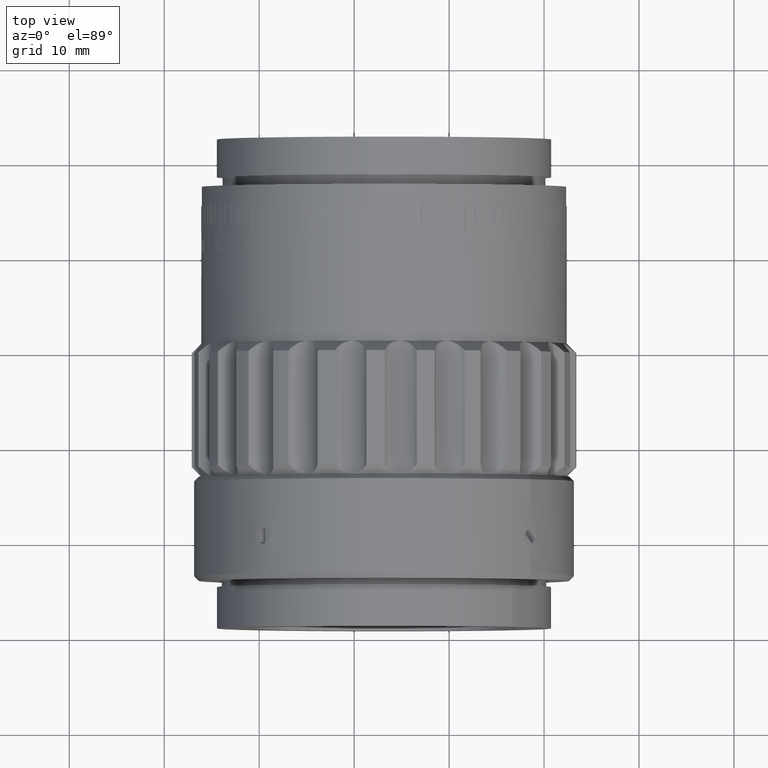
[diagram: clean part render]
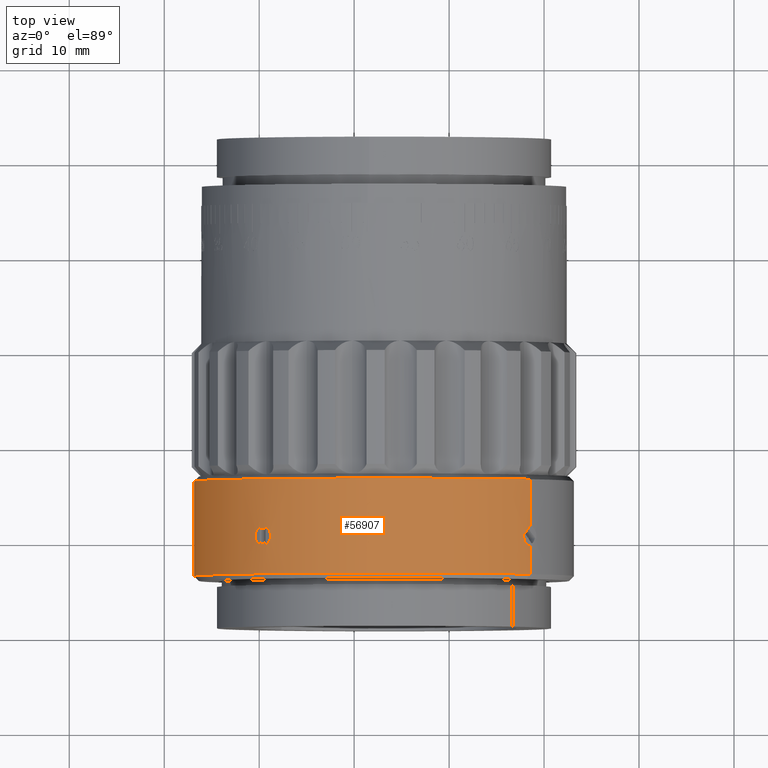
[diagram: same view with one face highlighted and labeled with its STEP entity id]
A machine part, top view. The second image highlights one B-rep face of the part: STEP entity #56907.
In plain terms, the highlighted cylindrical surface (partial cylindrical patch) has radius 20 mm, axis along (0, 1, 0).
Its self-contained STEP definition (entity closure, byte-faithful):
#378 = CARTESIAN_POINT ( 'NONE',  ( 19.98399359487488200, -5.299999999999996300, 0.8000000000000019300 ) ) ;
#528 = FACE_OUTER_BOUND ( 'NONE', #16709, .T. ) ;
#1154 = CARTESIAN_POINT ( 'NONE',  ( 0.8000000000044764600, -5.300000000000403100, 19.98399359487470100 ) ) ;
#1159 = DIRECTION ( 'NONE',  ( 0.0000000000000000000, 0.0000000000000000000, 1.000000000000000000 ) ) ;
#1886 = CARTESIAN_POINT ( 'NONE',  ( 0.8000000000002461800, -5.091077867250464600, 19.98399359487486700 ) ) ;
#2110 = VERTEX_POINT ( 'NONE', #104411 ) ;
#4138 = CARTESIAN_POINT ( 'NONE',  ( 0.4028582505888337300, -5.999063577640745500, 19.99617675279553500 ) ) ;
#4264 = CARTESIAN_POINT ( 'NONE',  ( 0.1055919989386063800, -4.499999999999989300, 20.00000000000000400 ) ) ;
#4461 = EDGE_CURVE ( 'NONE', #89483, #95693, #38873, .T. ) ;
#4491 = CARTESIAN_POINT ( 'NONE',  ( 0.7792810451761451600, -5.509114190804043100, 19.98485262099151400 ) ) ;
#4517 = CARTESIAN_POINT ( 'NONE',  ( 0.0000000000000000000, 35.23590944691601100, 20.00000000000000400 ) ) ;
#4766 = CARTESIAN_POINT ( 'NONE',  ( 19.98782690936322500, -5.703248869363863900, 0.6988496926265828100 ) ) ;
#5121 = CARTESIAN_POINT ( 'NONE',  ( 19.99914303528601400, -6.079311144774132800, -0.2089572940072939600 ) ) ;
#5485 = CARTESIAN_POINT ( 'NONE',  ( 19.99618028431697100, -5.999163555576855000, -0.4026901211119453500 ) ) ;
#5842 = CARTESIAN_POINT ( 'NONE',  ( 19.98399359487488500, -5.404429962910254100, -0.7999999999999093400 ) ) ;
#7698 = CARTESIAN_POINT ( 'NONE',  ( 20.00000349703886100, -4.499912573998551900, 0.1048575864917891500 ) ) ;
#8213 = CARTESIAN_POINT ( 'NONE',  ( 0.4177855268386868000, -6.013479424666752700, -19.99618181426268700 ) ) ;
#8778 = CARTESIAN_POINT ( 'NONE',  ( 19.99407401401930800, -4.660908146440447400, -0.4923824260895116000 ) ) ;
#8851 = B_SPLINE_CURVE_WITH_KNOTS ( 'NONE', 3,
 ( #101115, #42919, #18387, #84253, #59012, #76581, #76942, #8896 ),
 .UNSPECIFIED., .F., .F.,
 ( 4, 2, 2, 4 ),
 ( 0.003752494744560180800, 0.004064936457813801500, 0.004377378171067422700, 0.005002261597574662500 ),
 .UNSPECIFIED. ) ;
#8896 = CARTESIAN_POINT ( 'NONE',  ( 0.7999999999997926500, -5.299999999999997200, -19.98399359487488900 ) ) ;
#12765 = ORIENTED_EDGE ( 'NONE', *, *, #61950, .F. ) ;
#12896 = CARTESIAN_POINT ( 'NONE',  ( 0.7999999999999791700, -5.404406236139903000, 19.98399359487487800 ) ) ;
#13535 = CARTESIAN_POINT ( 'NONE',  ( 19.99411535154956700, -5.940483803218206100, -0.4908525271670490200 ) ) ;
#14441 = B_SPLINE_CURVE_WITH_KNOTS ( 'NONE', 3,
 ( #1154, #1886, #102488, #59658, #87707, #96483, #4264, #105585 ),
 .UNSPECIFIED., .F., .F.,
 ( 4, 2, 2, 4 ),
 ( 0.002501414822214147900, 0.003126954783387093400, 0.003439724763973566200, 0.003752494744560038900 ),
 .UNSPECIFIED. ) ;
#14891 = FACE_BOUND ( 'NONE', #72968, .T. ) ;
#16709 = EDGE_LOOP ( 'NONE', ( #33538, #58915, #94058, #20041, #76325, #65957, #55350, #100328, #41111, #73825 ) ) ;
#17020 = B_SPLINE_CURVE_WITH_KNOTS ( 'NONE', 3,
 ( #28928, #105374, #80108, #4766, #47175, #22294, #79398, #88597, #5121, #5485, #13535, #72077, #87867, #96979, #5842, #104655 ),
 .UNSPECIFIED., .F., .F.,
 ( 4, 2, 2, 2, 2, 2, 2, 4 ),
 ( 8.741117365843378200E-019, 0.0003126768527767692400, 0.0006253537055535376200, 0.001250707411107074400, 0.001563384263883842900, 0.001876061116660611100, 0.002188737969437379400, 0.002501414822214147900 ),
 .UNSPECIFIED. ) ;
#18307 = AXIS2_PLACEMENT_3D ( 'NONE', #22409, #104770, #29771 ) ;
#18387 = CARTESIAN_POINT ( 'NONE',  ( 0.2092535719827174300, -4.520755395536776100, -19.99914027273067800 ) ) ;
#20041 = ORIENTED_EDGE ( 'NONE', *, *, #22821, .F. ) ;
#20422 = EDGE_CURVE ( 'NONE', #85827, #42103, #40540, .T. ) ;
#20821 = CARTESIAN_POINT ( 'NONE',  ( 0.0000000000000000000, -9.299999999999995400, 0.0000000000000000000 ) ) ;
#22294 = CARTESIAN_POINT ( 'NONE',  ( 19.99617806243003300, -6.013373081114013800, 0.4179444563613280400 ) ) ;
#22409 = CARTESIAN_POINT ( 'NONE',  ( 0.0000000000000000000, 35.23590944691601100, 0.0000000000000000000 ) ) ;
#22821 = EDGE_CURVE ( 'NONE', #89483, #80333, #8851, .T. ) ;
#23267 = AXIS2_PLACEMENT_3D ( 'NONE', #20821, #100332, #1159 ) ;
#24072 = CARTESIAN_POINT ( 'NONE',  ( 0.0000000000000000000, 0.6999999999999923000, 20.00000000000000400 ) ) ;
#24901 = CARTESIAN_POINT ( 'NONE',  ( 19.98781340816131500, -4.882321036812321300, -0.7134841882917700700 ) ) ;
#25493 = VERTEX_POINT ( 'NONE', #89507 ) ;
#25631 = CARTESIAN_POINT ( 'NONE',  ( 19.99409898643181900, -4.660129645668575000, 0.4913956482717515300 ) ) ;
#25776 = CARTESIAN_POINT ( 'NONE',  ( 0.2087900673416459300, -6.100000000000405500, -20.00000000000002500 ) ) ;
#28658 = CARTESIAN_POINT ( 'NONE',  ( 0.8000000000044764600, -5.300000000000403100, 19.98399359487470100 ) ) ;
#28928 = CARTESIAN_POINT ( 'NONE',  ( 19.98399359487488200, -5.299999999999996300, 0.8000000000000019300 ) ) ;
#29771 = DIRECTION ( 'NONE',  ( 0.0000000000000000000, 0.0000000000000000000, 1.000000000000000000 ) ) ;
#31269 = CARTESIAN_POINT ( 'NONE',  ( 19.98399359487470400, -5.300000000000403100, -0.8000000000044067400 ) ) ;
#31826 = DIRECTION ( 'NONE',  ( -0.0000000000000000000, 1.000000000000000000, -0.0000000000000000000 ) ) ;
#33538 = ORIENTED_EDGE ( 'NONE', *, *, #60504, .T. ) ;
#33839 = CARTESIAN_POINT ( 'NONE',  ( 0.7999999999997924300, -5.405751089709887000, -19.98399359487488900 ) ) ;
#34480 = EDGE_CURVE ( 'NONE', #95693, #36244, #95646, .T. ) ;
#36244 = VERTEX_POINT ( 'NONE', #24072 ) ;
#38873 = LINE ( 'NONE', #91098, #95197 ) ;
#39284 = AXIS2_PLACEMENT_3D ( 'NONE', #47458, #71663, #104577 ) ;
#39514 = CARTESIAN_POINT ( 'NONE',  ( 0.0000000000000000000, 35.23590944691601100, 20.00000000000000400 ) ) ;
#40540 = B_SPLINE_CURVE_WITH_KNOTS ( 'NONE', 3,
 ( #79828, #79125, #105457, #4138, #88679, #55306, #54602, #4491, #12896, #28658 ),
 .UNSPECIFIED., .F., .F.,
 ( 4, 2, 2, 2, 4 ),
 ( 0.001250991575217576600, 0.001563597386966719200, 0.001876203198715861800, 0.002188809010465005100, 0.002501414822214147900 ),
 .UNSPECIFIED. ) ;
#40628 = EDGE_CURVE ( 'NONE', #78747, #93402, #91368, .T. ) ;
#40714 = ORIENTED_EDGE ( 'NONE', *, *, #82158, .F. ) ;
#40787 = DIRECTION ( 'NONE',  ( -0.0000000000000000000, 1.000000000000000000, -0.0000000000000000000 ) ) ;
#41111 = ORIENTED_EDGE ( 'NONE', *, *, #20422, .F. ) ;
#41355 = CARTESIAN_POINT ( 'NONE',  ( 19.99914633647595300, -4.520601637277483300, 0.2087119205729966500 ) ) ;
#41935 = CARTESIAN_POINT ( 'NONE',  ( 0.8000000000044764600, -5.300000000000403100, 19.98399359487470100 ) ) ;
#42103 = VERTEX_POINT ( 'NONE', #41935 ) ;
#42919 = CARTESIAN_POINT ( 'NONE',  ( 0.1054811749912584300, -4.500000000000024000, -20.00000000000000700 ) ) ;
#42957 = CARTESIAN_POINT ( 'NONE',  ( 0.6393312232479495500, -5.792092466864437100, -19.98991529649018500 ) ) ;
#44150 = CARTESIAN_POINT ( 'NONE',  ( 1.218485566359703400E-012, -6.100000000010400200, 20.00000000000041900 ) ) ;
#45780 = CARTESIAN_POINT ( 'NONE',  ( 0.7999999999997926500, -5.299999999999997200, -19.98399359487488900 ) ) ;
#47175 = CARTESIAN_POINT ( 'NONE',  ( 19.98991290204476500, -5.791994759573812600, 0.6394027188847603000 ) ) ;
#47417 = LINE ( 'NONE', #39514, #74974 ) ;
#47458 = CARTESIAN_POINT ( 'NONE',  ( 0.0000000000000000000, 0.6999999999999923000, 0.0000000000000000000 ) ) ;
#49394 = CARTESIAN_POINT ( 'NONE',  ( 19.99616166014974500, -4.601363432486277100, -0.4035820763142587400 ) ) ;
#49756 = CARTESIAN_POINT ( 'NONE',  ( 19.98399359487487800, -5.088593882699911800, 0.8000000000000020400 ) ) ;
#49910 = CARTESIAN_POINT ( 'NONE',  ( 0.7999999999997926500, -5.299999999999997200, -19.98399359487488900 ) ) ;
#51228 = CIRCLE ( 'NONE', #23267, 20.00000000000000400 ) ;
#52051 = VECTOR ( 'NONE', #40787, 1000.000000000000000 ) ;
#54602 = CARTESIAN_POINT ( 'NONE',  ( 0.6990058505160998700, -5.702986988761061600, 19.98782139331514400 ) ) ;
#54807 = B_SPLINE_CURVE_WITH_KNOTS ( 'NONE', 3,
 ( #49910, #33839, #58697, #108460, #42957, #8213, #25776, #75201 ),
 .UNSPECIFIED., .F., .F.,
 ( 4, 2, 2, 4 ),
 ( 0.0000000000000000000, 0.0003127478938043592900, 0.0006254957876087185900, 0.001250991575217435400 ),
 .UNSPECIFIED. ) ;
#55306 = CARTESIAN_POINT ( 'NONE',  ( 0.6403307007794035700, -5.791047751543527700, 19.98988637476070100 ) ) ;
#55350 = ORIENTED_EDGE ( 'NONE', *, *, #80205, .F. ) ;
#55433 = CARTESIAN_POINT ( 'NONE',  ( 2.449293598294706900E-015, 35.23590944691601100, -20.00000000000000400 ) ) ;
#56155 = CARTESIAN_POINT ( 'NONE',  ( -1.216036272985405300E-012, -6.100000000010400200, -20.00000000000041900 ) ) ;
#56907 = ADVANCED_FACE ( 'NONE', ( #14891, #528 ), #79035, .T. ) ;
#58280 = EDGE_CURVE ( 'NONE', #66881, #85827, #47417, .T. ) ;
#58697 = CARTESIAN_POINT ( 'NONE',  ( 0.7791701545960624300, -5.509521333936174200, -19.98485703525815500 ) ) ;
#58915 = ORIENTED_EDGE ( 'NONE', *, *, #40628, .T. ) ;
#59012 = CARTESIAN_POINT ( 'NONE',  ( 0.4916995472941636000, -4.660372564600091700, -19.99409125215156300 ) ) ;
#59658 = CARTESIAN_POINT ( 'NONE',  ( 0.4920797212495413000, -4.660665771674462800, 19.99408172628807300 ) ) ;
#59701 = EDGE_CURVE ( 'NONE', #80333, #93402, #54807, .T. ) ;
#60504 = EDGE_CURVE ( 'NONE', #66881, #78747, #51228, .T. ) ;
#61950 = EDGE_CURVE ( 'NONE', #25493, #86258, #17020, .T. ) ;
#63684 = VECTOR ( 'NONE', #80567, 1000.000000000000000 ) ;
#65236 = CARTESIAN_POINT ( 'NONE',  ( 2.449293598294706900E-015, -9.299999999999995400, -20.00000000000000400 ) ) ;
#65957 = ORIENTED_EDGE ( 'NONE', *, *, #34480, .T. ) ;
#66881 = VERTEX_POINT ( 'NONE', #100646 ) ;
#71663 = DIRECTION ( 'NONE',  ( 0.0000000000000000000, -1.000000000000000000, 0.0000000000000000000 ) ) ;
#72077 = CARTESIAN_POINT ( 'NONE',  ( 19.98988883888551600, -5.791148248611834900, -0.6402570604816969500 ) ) ;
#72968 = EDGE_LOOP ( 'NONE', ( #12765, #40714 ) ) ;
#73825 = ORIENTED_EDGE ( 'NONE', *, *, #58280, .F. ) ;
#74075 = CARTESIAN_POINT ( 'NONE',  ( 2.449293599741915600E-015, -4.499999999999997300, -20.00000000000000400 ) ) ;
#74974 = VECTOR ( 'NONE', #31826, 1000.000000000000000 ) ;
#75201 = CARTESIAN_POINT ( 'NONE',  ( -1.216036272985405300E-012, -6.100000000010400200, -20.00000000000041900 ) ) ;
#75758 = CARTESIAN_POINT ( 'NONE',  ( 19.98399359487470400, -5.300000000000403100, -0.8000000000044067400 ) ) ;
#76325 = ORIENTED_EDGE ( 'NONE', *, *, #4461, .T. ) ;
#76581 = CARTESIAN_POINT ( 'NONE',  ( 0.7131532807697246200, -4.881694846039311000, -19.98782694979167800 ) ) ;
#76749 = DIRECTION ( 'NONE',  ( -0.0000000000000000000, 1.000000000000000000, -0.0000000000000000000 ) ) ;
#76942 = CARTESIAN_POINT ( 'NONE',  ( 0.7999999999997926500, -5.088704881459158000, -19.98399359487488900 ) ) ;
#78090 = LINE ( 'NONE', #4517, #63684 ) ;
#78747 = VERTEX_POINT ( 'NONE', #65236 ) ;
#79035 = CYLINDRICAL_SURFACE ( 'NONE', #18307, 20.00000000000000400 ) ;
#79125 = CARTESIAN_POINT ( 'NONE',  ( 0.1043476067803419300, -6.099999999999776700, 19.99999999999999300 ) ) ;
#79398 = CARTESIAN_POINT ( 'NONE',  ( 19.99999702805539700, -6.099925701380010800, 0.2090232546560810400 ) ) ;
#79828 = CARTESIAN_POINT ( 'NONE',  ( 1.218485566359703400E-012, -6.100000000010400200, 20.00000000000041900 ) ) ;
#80108 = CARTESIAN_POINT ( 'NONE',  ( 19.98485661030273500, -5.509472734118598500, 0.7791801570807525000 ) ) ;
#80205 = EDGE_CURVE ( 'NONE', #2110, #36244, #78090, .T. ) ;
#80333 = VERTEX_POINT ( 'NONE', #45780 ) ;
#80567 = DIRECTION ( 'NONE',  ( -0.0000000000000000000, 1.000000000000000000, -0.0000000000000000000 ) ) ;
#82158 = EDGE_CURVE ( 'NONE', #86258, #25493, #100497, .T. ) ;
#83771 = CARTESIAN_POINT ( 'NONE',  ( 19.98399359487488200, -5.091187504228983600, -0.8000000000001764600 ) ) ;
#84253 = CARTESIAN_POINT ( 'NONE',  ( 0.4031246929027215200, -4.601072469461548100, -19.99617186332717400 ) ) ;
#85827 = VERTEX_POINT ( 'NONE', #44150 ) ;
#86258 = VERTEX_POINT ( 'NONE', #31269 ) ;
#87707 = CARTESIAN_POINT ( 'NONE',  ( 0.4032067685461690500, -4.601137505461320400, 19.99616962763699800 ) ) ;
#87867 = CARTESIAN_POINT ( 'NONE',  ( 19.98782302396434200, -5.703072538420707700, -0.6989602686416237500 ) ) ;
#88156 = EDGE_CURVE ( 'NONE', #42103, #2110, #14441, .T. ) ;
#88597 = CARTESIAN_POINT ( 'NONE',  ( 20.00000148293579400, -6.100037073397206000, -0.1040847893251545100 ) ) ;
#88679 = CARTESIAN_POINT ( 'NONE',  ( 0.4909825422651633600, -5.940380702275929200, 19.99411205393715500 ) ) ;
#89483 = VERTEX_POINT ( 'NONE', #74075 ) ;
#89507 = CARTESIAN_POINT ( 'NONE',  ( 19.98399359487488200, -5.299999999999996300, 0.8000000000000019300 ) ) ;
#91098 = CARTESIAN_POINT ( 'NONE',  ( 2.449293598294706900E-015, 35.23590944691601100, -20.00000000000000400 ) ) ;
#91368 = LINE ( 'NONE', #55433, #52051 ) ;
#93402 = VERTEX_POINT ( 'NONE', #56155 ) ;
#94058 = ORIENTED_EDGE ( 'NONE', *, *, #59701, .F. ) ;
#95197 = VECTOR ( 'NONE', #76749, 1000.000000000000000 ) ;
#95646 = CIRCLE ( 'NONE', #39284, 20.00000000000000400 ) ;
#95693 = VERTEX_POINT ( 'NONE', #98765 ) ;
#96483 = CARTESIAN_POINT ( 'NONE',  ( 0.2095754165909222400, -4.520857760588615500, 19.99913632185636600 ) ) ;
#96979 = CARTESIAN_POINT ( 'NONE',  ( 19.98485301453317900, -5.509160814699771300, -0.7792718921933551300 ) ) ;
#98765 = CARTESIAN_POINT ( 'NONE',  ( 2.449293598294706900E-015, 0.6999999999999923000, -20.00000000000000400 ) ) ;
#99916 = CARTESIAN_POINT ( 'NONE',  ( 19.99913026953308300, -4.521011262996089500, -0.2101144769180316500 ) ) ;
#100328 = ORIENTED_EDGE ( 'NONE', *, *, #88156, .F. ) ;
#100332 = DIRECTION ( 'NONE',  ( -0.0000000000000000000, 1.000000000000000000, -0.0000000000000000000 ) ) ;
#100497 = B_SPLINE_CURVE_WITH_KNOTS ( 'NONE', 3,
 ( #75758, #83771, #24901, #8778, #49394, #99916, #100650, #7698, #41355, #108301, #25631, #107958, #49756, #378 ),
 .UNSPECIFIED., .F., .F.,
 ( 4, 2, 2, 2, 2, 2, 4 ),
 ( 0.002501414822214147900, 0.003126626516054274400, 0.003439232362974338500, 0.003751838209894402200, 0.004064444056814465800, 0.004377049903734529100, 0.005002261597574659100 ),
 .UNSPECIFIED. ) ;
#100646 = CARTESIAN_POINT ( 'NONE',  ( 0.0000000000000000000, -9.299999999999995400, 20.00000000000000400 ) ) ;
#100650 = CARTESIAN_POINT ( 'NONE',  ( 19.99999648085660600, -4.500087978615319200, -0.1061873850077257000 ) ) ;
#101115 = CARTESIAN_POINT ( 'NONE',  ( 2.449293599741915600E-015, -4.499999999999997300, -20.00000000000000400 ) ) ;
#102488 = CARTESIAN_POINT ( 'NONE',  ( 0.7133929111410021200, -4.882108405650305000, 19.98781770660667300 ) ) ;
#104411 = CARTESIAN_POINT ( 'NONE',  ( -1.448348621985777700E-024, -4.499999999999997300, 20.00000000000000400 ) ) ;
#104577 = DIRECTION ( 'NONE',  ( 0.0000000000000000000, 0.0000000000000000000, -1.000000000000000000 ) ) ;
#104655 = CARTESIAN_POINT ( 'NONE',  ( 19.98399359487470400, -5.300000000000403100, -0.8000000000044067400 ) ) ;
#104770 = DIRECTION ( 'NONE',  ( -0.0000000000000000000, 1.000000000000000000, -0.0000000000000000000 ) ) ;
#105374 = CARTESIAN_POINT ( 'NONE',  ( 19.98399359487488200, -5.405727068233704600, 0.8000000000000018200 ) ) ;
#105457 = CARTESIAN_POINT ( 'NONE',  ( 0.2091852979200910500, -6.079247179517151000, 19.99914050678785300 ) ) ;
#105585 = CARTESIAN_POINT ( 'NONE',  ( -1.448348621985777700E-024, -4.499999999999997300, 20.00000000000000400 ) ) ;
#107958 = CARTESIAN_POINT ( 'NONE',  ( 19.98783122628969300, -4.881483220031660700, 0.7130629136727402200 ) ) ;
#108301 = CARTESIAN_POINT ( 'NONE',  ( 19.99617982584901200, -4.600846763773346600, 0.4027495820948925300 ) ) ;
#108460 = CARTESIAN_POINT ( 'NONE',  ( 0.6988049355906208500, -5.703332345816532400, -19.98782850915814500 ) ) ;